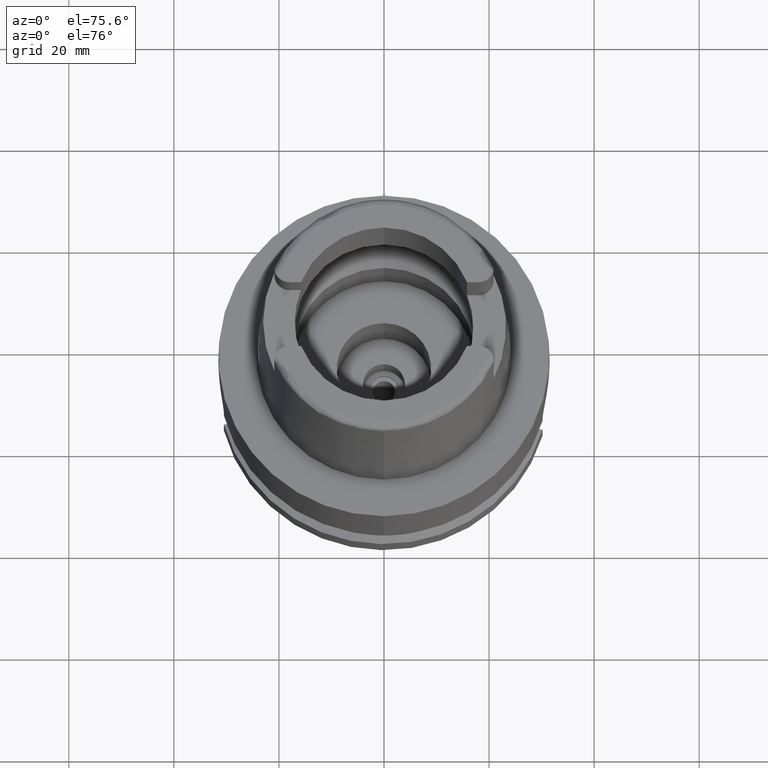
[diagram: clean part render]
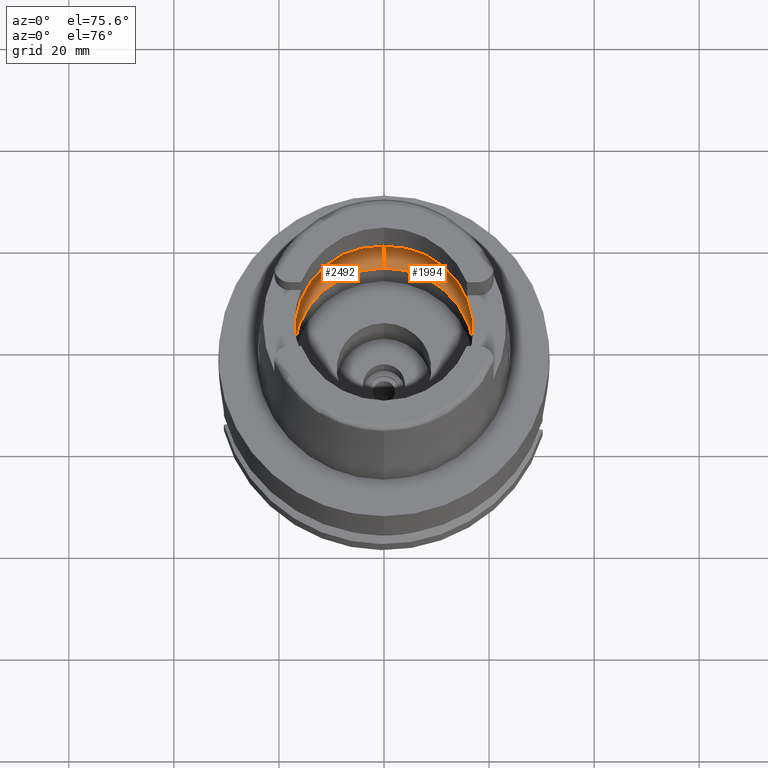
[diagram: same view with one multi-face feature highlighted, each face labeled with its STEP entity id]
A machine part, auxiliary view. The highlighted faces form ONE feature: a constant-radius fillet chain: 2 tangent blend faces with common blend radius 8 mm. The faces share edges in the B-rep.
Their STEP definitions:
[1] entity #2492 (Torus):
#52 = VERTEX_POINT ( 'NONE', #3886 ) ;
#147 = CARTESIAN_POINT ( 'NONE',  ( 0.0000000000000000000, 1.300407714776999850E-14, 6.186348233825000875 ) ) ;
#174 = CARTESIAN_POINT ( 'NONE',  ( 0.0000000000000000000, 20.00000000000000000, 6.186348233825000875 ) ) ;
#177 = CARTESIAN_POINT ( 'NONE',  ( -19.84575864665999845, 2.479085262491000030, 6.186348233825000875 ) ) ;
#184 = DIRECTION ( 'NONE',  ( 0.0000000000000000000, 0.6562500000000006661, -0.7545435292281016393 ) ) ;
#213 = B_SPLINE_CURVE_WITH_KNOTS ( 'NONE', 3,
 ( #3654, #623, #1465, #1895, #4470, #4074, #4963, #2372, #2763, #564, #1050, #3714, #594, #652, #177 ),
 .UNSPECIFIED., .F., .F.,
 ( 4, 2, 2, 1, 1, 1, 2, 2, 4 ),
 ( 0.0000000000000000000, 0.2500000000000007216, 0.3750000000000008882, 0.4375000000000010547, 0.4687500000000009992, 0.4843750000000011657, 0.4921875000000013323, 0.5000000000000014433, 1.000000000000000000 ),
 .UNSPECIFIED. ) ;
#370 = CARTESIAN_POINT ( 'NONE',  ( -19.94501428475999916, 0.0000000000000000000, 5.250000000000000000 ) ) ;
#384 = CARTESIAN_POINT ( 'NONE',  ( 0.0000000000000000000, 1.300407714776999850E-14, 6.186348233825000875 ) ) ;
#431 = CARTESIAN_POINT ( 'NONE',  ( -19.91448534792914060, -1.610508948442765709, 5.612924528901617194 ) ) ;
#482 = CARTESIAN_POINT ( 'NONE',  ( -19.94501428475999560, -0.4960410447512794141, 5.249999999999999112 ) ) ;
#547 = CARTESIAN_POINT ( 'NONE',  ( 0.0000000000000000000, 12.00000000000000000, 6.186348233825000875 ) ) ;
#564 = CARTESIAN_POINT ( 'NONE',  ( -19.92647143839581148, 1.304859504442483997, 5.484337483335712804 ) ) ;
#594 = CARTESIAN_POINT ( 'NONE',  ( -19.90996163222827420, 1.795769164605748314, 5.670285425948012659 ) ) ;
#623 = CARTESIAN_POINT ( 'NONE',  ( -19.94501428475999916, 0.2479298819758197214, 5.250000000000000000 ) ) ;
#652 = CARTESIAN_POINT ( 'NONE',  ( -19.88332336789493837, 2.178369348231663061, 5.921389932943862178 ) ) ;
#661 = AXIS2_PLACEMENT_3D ( 'NONE', #5313, #2262, #2685 ) ;
#881 = VERTEX_POINT ( 'NONE', #5395 ) ;
#954 = CARTESIAN_POINT ( 'NONE',  ( -19.94501428475999916, 0.0000000000000000000, 5.250000000000000000 ) ) ;
#1037 = CARTESIAN_POINT ( 'NONE',  ( 0.0000000000000000000, 1.300407714776999850E-14, 6.186348233825000875 ) ) ;
#1050 = CARTESIAN_POINT ( 'NONE',  ( -19.92607479997090181, 1.316895428534838430, 5.488828160326498562 ) ) ;
#1252 = CARTESIAN_POINT ( 'NONE',  ( -19.92391568384000777, -1.379820152732496918, 5.513021742193904728 ) ) ;
#1390 = DIRECTION ( 'NONE',  ( 1.000000000000000000, 0.0000000000000000000, 0.0000000000000000000 ) ) ;
#1465 = CARTESIAN_POINT ( 'NONE',  ( -19.94340254766833098, 0.4848963393951380429, 5.274596353473929966 ) ) ;
#1472 = AXIS2_PLACEMENT_3D ( 'NONE', #147, #4529, #4499 ) ;
#1476 = VERTEX_POINT ( 'NONE', #3082 ) ;
#1610 = EDGE_CURVE ( 'NONE', #2500, #1983, #213, .T. ) ;
#1675 = EDGE_LOOP ( 'NONE', ( #3782, #3605, #4403, #2002, #2463, #4620, #4049 ) ) ;
#1730 = CARTESIAN_POINT ( 'NONE',  ( -19.90654456091240476, -1.770007383644878418, 5.691881026691317125 ) ) ;
#1758 = CARTESIAN_POINT ( 'NONE',  ( -19.92517794959957911, -1.343610331872348684, 5.498961333861721812 ) ) ;
#1786 = CARTESIAN_POINT ( 'NONE',  ( -19.90056792326557300, -1.871072945708251334, 5.748194156555812562 ) ) ;
#1789 = CIRCLE ( 'NONE', #1972, 17.25000000000000000 ) ;
#1851 = FACE_OUTER_BOUND ( 'NONE', #1675, .T. ) ;
#1880 = DIRECTION ( 'NONE',  ( 0.0000000000000000000, 1.000000000000000000, 0.0000000000000000000 ) ) ;
#1895 = CARTESIAN_POINT ( 'NONE',  ( -19.93856733639333711, 0.8184016122553290362, 5.338643284459297256 ) ) ;
#1900 = CARTESIAN_POINT ( 'NONE',  ( -19.86453971831038245, -2.328737623861152795, 6.053878174929121059 ) ) ;
#1956 = VERTEX_POINT ( 'NONE', #3130 ) ;
#1972 = AXIS2_PLACEMENT_3D ( 'NONE', #2721, #3179, #1880 ) ;
#1983 = VERTEX_POINT ( 'NONE', #4841 ) ;
#2002 = ORIENTED_EDGE ( 'NONE', *, *, #4089, .T. ) ;
#2105 = CIRCLE ( 'NONE', #2294, 20.00000000000000000 ) ;
#2249 = EDGE_CURVE ( 'NONE', #1476, #1956, #1789, .T. ) ;
#2262 = DIRECTION ( 'NONE',  ( -1.000000000000000000, 0.0000000000000000000, 0.0000000000000000000 ) ) ;
#2294 = AXIS2_PLACEMENT_3D ( 'NONE', #384, #3497, #4749 ) ;
#2309 = CIRCLE ( 'NONE', #1472, 20.00000000000001421 ) ;
#2372 = CARTESIAN_POINT ( 'NONE',  ( -19.92840583769821805, 1.244196210291986793, 5.462253310886856283 ) ) ;
#2463 = ORIENTED_EDGE ( 'NONE', *, *, #4375, .F. ) ;
#2492 = ADVANCED_FACE ( 'NONE', ( #1851 ), #4175, .F. ) ;
#2500 = VERTEX_POINT ( 'NONE', #954 ) ;
#2663 = CIRCLE ( 'NONE', #4688, 7.999999999999992895 ) ;
#2664 = DIRECTION ( 'NONE',  ( 0.0000000000000000000, 0.0000000000000000000, -1.000000000000000000 ) ) ;
#2685 = DIRECTION ( 'NONE',  ( 0.0000000000000000000, -0.6562500000000006661, -0.7545435292281016393 ) ) ;
#2721 = CARTESIAN_POINT ( 'NONE',  ( 0.0000000000000000000, 1.300407714776999850E-14, 0.1500000000000999700 ) ) ;
#2763 = CARTESIAN_POINT ( 'NONE',  ( -19.92706167414716134, 1.286758763267425554, 5.477636828631165855 ) ) ;
#2897 = AXIS2_PLACEMENT_3D ( 'NONE', #1037, #2664, #3211 ) ;
#3055 = CARTESIAN_POINT ( 'NONE',  ( -19.92208503460736679, -1.430038535463957761, 5.533134759046327567 ) ) ;
#3082 = CARTESIAN_POINT ( 'NONE',  ( 0.0000000000000000000, 17.25000000000000000, 0.1500000000000999700 ) ) ;
#3122 = CIRCLE ( 'NONE', #661, 7.999999999999992895 ) ;
#3130 = CARTESIAN_POINT ( 'NONE',  ( 0.0000000000000000000, -17.25000000000000000, 0.1500000000000999700 ) ) ;
#3179 = DIRECTION ( 'NONE',  ( 0.0000000000000000000, 0.0000000000000000000, 1.000000000000000000 ) ) ;
#3211 = DIRECTION ( 'NONE',  ( 0.0000000000000000000, -1.000000000000000000, 0.0000000000000000000 ) ) ;
#3290 = VERTEX_POINT ( 'NONE', #174 ) ;
#3484 = CARTESIAN_POINT ( 'NONE',  ( -19.92547016831344209, -1.335028391746079013, 5.495682638901432604 ) ) ;
#3497 = DIRECTION ( 'NONE',  ( 0.0000000000000000000, 0.0000000000000000000, -1.000000000000000000 ) ) ;
#3538 = CARTESIAN_POINT ( 'NONE',  ( -19.91819969907412258, -1.528787881862460729, 5.574826406029533388 ) ) ;
#3605 = ORIENTED_EDGE ( 'NONE', *, *, #3989, .F. ) ;
#3654 = CARTESIAN_POINT ( 'NONE',  ( -19.94501428475999916, 0.0000000000000000000, 5.250000000000000000 ) ) ;
#3714 = CARTESIAN_POINT ( 'NONE',  ( -19.92591893665112224, 1.321589401495853577, 5.490589463356736033 ) ) ;
#3782 = ORIENTED_EDGE ( 'NONE', *, *, #5073, .F. ) ;
#3886 = CARTESIAN_POINT ( 'NONE',  ( -19.84575864665999845, -2.479085262491000030, 6.186348233825000875 ) ) ;
#3989 = EDGE_CURVE ( 'NONE', #1956, #881, #3122, .T. ) ;
#4049 = ORIENTED_EDGE ( 'NONE', *, *, #4198, .F. ) ;
#4074 = CARTESIAN_POINT ( 'NONE',  ( -19.93292625657250738, 1.081460392890758682, 5.408920836530865195 ) ) ;
#4089 = EDGE_CURVE ( 'NONE', #1476, #3290, #2663, .T. ) ;
#4111 = CARTESIAN_POINT ( 'NONE',  ( -19.84575864665999845, -2.479085262491000030, 6.186348233825000875 ) ) ;
#4175 = TOROIDAL_SURFACE ( 'NONE', #2897, 12.00000000000000000, 8.000000000000000000 ) ;
#4198 = EDGE_CURVE ( 'NONE', #52, #2500, #5201, .T. ) ;
#4335 = CARTESIAN_POINT ( 'NONE',  ( -19.88058967141808253, -2.158413397975924575, 5.925203673425760265 ) ) ;
#4375 = EDGE_CURVE ( 'NONE', #1983, #3290, #2309, .T. ) ;
#4403 = ORIENTED_EDGE ( 'NONE', *, *, #2249, .F. ) ;
#4470 = CARTESIAN_POINT ( 'NONE',  ( -19.93655266502874923, 0.9259499426782410447, 5.364516364714504881 ) ) ;
#4499 = DIRECTION ( 'NONE',  ( -0.9922879323327794543, 0.1239542631244973381, 0.0000000000000000000 ) ) ;
#4529 = DIRECTION ( 'NONE',  ( 0.0000000000000000000, 0.0000000000000000000, -1.000000000000000000 ) ) ;
#4620 = ORIENTED_EDGE ( 'NONE', *, *, #1610, .F. ) ;
#4688 = AXIS2_PLACEMENT_3D ( 'NONE', #547, #1390, #184 ) ;
#4749 = DIRECTION ( 'NONE',  ( 0.0000000000000000000, -1.000000000000000000, 0.0000000000000000000 ) ) ;
#4793 = CARTESIAN_POINT ( 'NONE',  ( -19.93856674119000161, -0.9459643382330632511, 5.348222180792832070 ) ) ;
#4841 = CARTESIAN_POINT ( 'NONE',  ( -19.84575864665999845, 2.479085262491000030, 6.186348233825000875 ) ) ;
#4963 = CARTESIAN_POINT ( 'NONE',  ( -19.93096195199203180, 1.157765540341131993, 5.432522363494912021 ) ) ;
#5073 = EDGE_CURVE ( 'NONE', #881, #52, #2105, .T. ) ;
#5195 = CARTESIAN_POINT ( 'NONE',  ( -19.92467624382528868, -1.358118166560958739, 5.504563616461238595 ) ) ;
#5201 = B_SPLINE_CURVE_WITH_KNOTS ( 'NONE', 3,
 ( #4111, #1900, #4335, #1786, #1730, #431, #3538, #3055, #1252, #5195, #1758, #3484, #4793, #482, #370 ),
 .UNSPECIFIED., .F., .F.,
 ( 4, 2, 2, 1, 1, 1, 2, 2, 4 ),
 ( 0.0000000000000000000, 0.2500000000000023315, 0.3750000000000032752, 0.4375000000000036082, 0.4687500000000038858, 0.4843750000000041633, 0.4921875000000042744, 0.5000000000000043299, 1.000000000000000000 ),
 .UNSPECIFIED. ) ;
#5313 = CARTESIAN_POINT ( 'NONE',  ( 0.0000000000000000000, -12.00000000000000000, 6.186348233825000875 ) ) ;
#5395 = CARTESIAN_POINT ( 'NONE',  ( 0.0000000000000000000, -20.00000000000000000, 6.186348233825000875 ) ) ;
[2] entity #1994 (Torus):
#20 = DIRECTION ( 'NONE',  ( 0.0000000000000000000, -1.000000000000000000, 0.0000000000000000000 ) ) ;
#100 = ORIENTED_EDGE ( 'NONE', *, *, #4089, .F. ) ;
#124 = VERTEX_POINT ( 'NONE', #1332 ) ;
#174 = CARTESIAN_POINT ( 'NONE',  ( 0.0000000000000000000, 20.00000000000000000, 6.186348233825000875 ) ) ;
#184 = DIRECTION ( 'NONE',  ( 0.0000000000000000000, 0.6562500000000006661, -0.7545435292281016393 ) ) ;
#343 = CARTESIAN_POINT ( 'NONE',  ( 0.0000000000000000000, 1.300407714776999850E-14, 6.186348233825000875 ) ) ;
#501 = VERTEX_POINT ( 'NONE', #3390 ) ;
#547 = CARTESIAN_POINT ( 'NONE',  ( 0.0000000000000000000, 12.00000000000000000, 6.186348233825000875 ) ) ;
#551 = CARTESIAN_POINT ( 'NONE',  ( 19.94501428475999916, -0.2480014560080615882, 5.249999999999998224 ) ) ;
#556 = ORIENTED_EDGE ( 'NONE', *, *, #5210, .F. ) ;
#661 = AXIS2_PLACEMENT_3D ( 'NONE', #5313, #2262, #2685 ) ;
#680 = CARTESIAN_POINT ( 'NONE',  ( 19.94501428475999916, 0.0000000000000000000, 5.250000000000000000 ) ) ;
#856 = CARTESIAN_POINT ( 'NONE',  ( 19.92840408989551904, -1.244367450968541844, 5.462313551719105043 ) ) ;
#881 = VERTEX_POINT ( 'NONE', #5395 ) ;
#963 = CARTESIAN_POINT ( 'NONE',  ( 19.91448758455283041, 1.610401092888342545, 5.612873060275781256 ) ) ;
#1059 = CIRCLE ( 'NONE', #3618, 20.00000000000001421 ) ;
#1143 = DIRECTION ( 'NONE',  ( 0.0000000000000000000, 0.0000000000000000000, -1.000000000000000000 ) ) ;
#1211 = ORIENTED_EDGE ( 'NONE', *, *, #4588, .F. ) ;
#1228 = CARTESIAN_POINT ( 'NONE',  ( 19.92646948702511267, -1.305026996693501085, 5.484399654281021164 ) ) ;
#1233 = EDGE_CURVE ( 'NONE', #124, #5206, #5311, .T. ) ;
#1301 = FACE_OUTER_BOUND ( 'NONE', #3777, .T. ) ;
#1332 = CARTESIAN_POINT ( 'NONE',  ( 19.94501428475999916, 0.0000000000000000000, 5.250000000000000000 ) ) ;
#1379 = CARTESIAN_POINT ( 'NONE',  ( 19.88059069913698096, 2.158394907212736413, 5.925188472889173497 ) ) ;
#1390 = DIRECTION ( 'NONE',  ( 1.000000000000000000, 0.0000000000000000000, 0.0000000000000000000 ) ) ;
#1476 = VERTEX_POINT ( 'NONE', #3082 ) ;
#1496 = DIRECTION ( 'NONE',  ( 0.0000000000000000000, 0.0000000000000000000, -1.000000000000000000 ) ) ;
#1641 = EDGE_CURVE ( 'NONE', #3290, #501, #3151, .T. ) ;
#1707 = CARTESIAN_POINT ( 'NONE',  ( 19.93096047318400110, -1.157940144303397423, 5.432579051026481309 ) ) ;
#1716 = ORIENTED_EDGE ( 'NONE', *, *, #1641, .F. ) ;
#1849 = EDGE_CURVE ( 'NONE', #5206, #881, #1059, .T. ) ;
#1878 = CARTESIAN_POINT ( 'NONE',  ( 19.94501428475999916, 0.0000000000000000000, 5.250000000000000000 ) ) ;
#1956 = VERTEX_POINT ( 'NONE', #3130 ) ;
#1959 = CARTESIAN_POINT ( 'NONE',  ( 19.92208759317466615, 1.429891859895263462, 5.533074159369055778 ) ) ;
#1989 = CARTESIAN_POINT ( 'NONE',  ( 19.94501428475999560, 0.4959066315530564206, 5.249999999999998224 ) ) ;
#1994 = ADVANCED_FACE ( 'NONE', ( #1301 ), #4067, .F. ) ;
#2151 = CARTESIAN_POINT ( 'NONE',  ( 0.0000000000000000000, 1.300407714776999850E-14, 0.1500000000000999700 ) ) ;
#2262 = DIRECTION ( 'NONE',  ( -1.000000000000000000, 0.0000000000000000000, 0.0000000000000000000 ) ) ;
#2581 = DIRECTION ( 'NONE',  ( 0.0000000000000000000, 0.0000000000000000000, 1.000000000000000000 ) ) ;
#2663 = CIRCLE ( 'NONE', #4688, 7.999999999999992895 ) ;
#2673 = CARTESIAN_POINT ( 'NONE',  ( 19.86454025209263818, 2.328733350789800483, 6.053874409961354175 ) ) ;
#2685 = DIRECTION ( 'NONE',  ( 0.0000000000000000000, -0.6562500000000006661, -0.7545435292281016393 ) ) ;
#2700 = CARTESIAN_POINT ( 'NONE',  ( 0.0000000000000000000, 1.300407714776999850E-14, 6.186348233825000875 ) ) ;
#2848 = CARTESIAN_POINT ( 'NONE',  ( 19.92467892137705832, 1.357954799801602386, 5.504500142502863902 ) ) ;
#2853 = CARTESIAN_POINT ( 'NONE',  ( 0.0000000000000000000, 1.300407714776999850E-14, 6.186348233825000875 ) ) ;
#2906 = CARTESIAN_POINT ( 'NONE',  ( 19.91820208730434061, 1.528663205433574479, 5.574770377084651507 ) ) ;
#2971 = CARTESIAN_POINT ( 'NONE',  ( 19.88332298889634231, -2.178372382208180191, 5.921392606155435168 ) ) ;
#3002 = CARTESIAN_POINT ( 'NONE',  ( 19.93856665794375260, -0.8185641883581231681, 5.338679171357463282 ) ) ;
#3082 = CARTESIAN_POINT ( 'NONE',  ( 0.0000000000000000000, 17.25000000000000000, 0.1500000000000999700 ) ) ;
#3100 = DIRECTION ( 'NONE',  ( 0.0000000000000000000, -1.000000000000000000, 0.0000000000000000000 ) ) ;
#3122 = CIRCLE ( 'NONE', #661, 7.999999999999992895 ) ;
#3130 = CARTESIAN_POINT ( 'NONE',  ( 0.0000000000000000000, -17.25000000000000000, 0.1500000000000999700 ) ) ;
#3132 = CARTESIAN_POINT ( 'NONE',  ( 19.90056963212105856, 1.871013146673759620, 5.748159224276529145 ) ) ;
#3151 = CIRCLE ( 'NONE', #3611, 20.00000000000000000 ) ;
#3178 = CARTESIAN_POINT ( 'NONE',  ( 19.94340237805593219, -0.4850180019504579665, 5.274610396127643597 ) ) ;
#3270 = CARTESIAN_POINT ( 'NONE',  ( 19.90996057478010073, -1.795819818033601134, 5.670329850203941646 ) ) ;
#3290 = VERTEX_POINT ( 'NONE', #174 ) ;
#3295 = CIRCLE ( 'NONE', #4472, 17.25000000000000000 ) ;
#3390 = CARTESIAN_POINT ( 'NONE',  ( 19.84575864665999845, 2.479085262491000030, 6.186348233825000875 ) ) ;
#3433 = CARTESIAN_POINT ( 'NONE',  ( 19.93292498447956262, -1.081634995804885646, 5.408973391216312265 ) ) ;
#3611 = AXIS2_PLACEMENT_3D ( 'NONE', #2853, #1496, #4594 ) ;
#3618 = AXIS2_PLACEMENT_3D ( 'NONE', #343, #1143, #4276 ) ;
#3710 = CARTESIAN_POINT ( 'NONE',  ( 19.92547292124042002, 1.334858430821708408, 5.495617893788528718 ) ) ;
#3725 = CARTESIAN_POINT ( 'NONE',  ( 19.92591688602272626, -1.321756895853151592, 5.490652547651766469 ) ) ;
#3735 = CARTESIAN_POINT ( 'NONE',  ( 19.92518065070697730, 1.343443539031581091, 5.498897323770547629 ) ) ;
#3777 = EDGE_LOOP ( 'NONE', ( #1211, #1716, #100, #556, #4808, #4103, #4058 ) ) ;
#3826 = CARTESIAN_POINT ( 'NONE',  ( 19.84575864665999845, -2.479085262491000030, 6.186348233825000875 ) ) ;
#3989 = EDGE_CURVE ( 'NONE', #1956, #881, #3122, .T. ) ;
#4058 = ORIENTED_EDGE ( 'NONE', *, *, #1233, .F. ) ;
#4067 = TOROIDAL_SURFACE ( 'NONE', #4708, 12.00000000000000000, 8.000000000000000000 ) ;
#4089 = EDGE_CURVE ( 'NONE', #1476, #3290, #2663, .T. ) ;
#4100 = CARTESIAN_POINT ( 'NONE',  ( 19.84575864665999845, 2.479085262491000030, 6.186348233825000875 ) ) ;
#4103 = ORIENTED_EDGE ( 'NONE', *, *, #1849, .F. ) ;
#4276 = DIRECTION ( 'NONE',  ( 0.9922879323327794543, -0.1239542631244973381, 0.0000000000000000000 ) ) ;
#4415 = DIRECTION ( 'NONE',  ( 0.0000000000000000000, 0.0000000000000000000, -1.000000000000000000 ) ) ;
#4472 = AXIS2_PLACEMENT_3D ( 'NONE', #2151, #2581, #20 ) ;
#4588 = EDGE_CURVE ( 'NONE', #501, #124, #5478, .T. ) ;
#4590 = CARTESIAN_POINT ( 'NONE',  ( 19.93856764937210002, 0.9457748455398172771, 5.348171637976009585 ) ) ;
#4594 = DIRECTION ( 'NONE',  ( 0.0000000000000000000, 1.000000000000000000, 0.0000000000000000000 ) ) ;
#4688 = AXIS2_PLACEMENT_3D ( 'NONE', #547, #1390, #184 ) ;
#4708 = AXIS2_PLACEMENT_3D ( 'NONE', #2700, #4415, #3100 ) ;
#4808 = ORIENTED_EDGE ( 'NONE', *, *, #3989, .T. ) ;
#4877 = CARTESIAN_POINT ( 'NONE',  ( 19.90654648685201167, 1.769930501896109565, 5.691839127009703958 ) ) ;
#5033 = CARTESIAN_POINT ( 'NONE',  ( 19.93655177456368932, -0.9261205406783343808, 5.364559693695562181 ) ) ;
#5138 = CARTESIAN_POINT ( 'NONE',  ( 19.92705978489038188, -1.286927501587694644, 5.477698479241642993 ) ) ;
#5181 = CARTESIAN_POINT ( 'NONE',  ( 19.84575864665999845, -2.479085262491000030, 6.186348233825000875 ) ) ;
#5206 = VERTEX_POINT ( 'NONE', #5181 ) ;
#5210 = EDGE_CURVE ( 'NONE', #1956, #1476, #3295, .T. ) ;
#5311 = B_SPLINE_CURVE_WITH_KNOTS ( 'NONE', 3,
 ( #1878, #551, #3178, #3002, #5033, #3433, #1707, #856, #5138, #1228, #5462, #3725, #3270, #2971, #3826 ),
 .UNSPECIFIED., .F., .F.,
 ( 4, 2, 2, 1, 1, 1, 2, 2, 4 ),
 ( 0.0000000000000000000, 0.2499999999999981681, 0.3749999999999972244, 0.4374999999999969469, 0.4687499999999968359, 0.4843749999999966138, 0.4921874999999966138, 0.4999999999999966693, 1.000000000000000000 ),
 .UNSPECIFIED. ) ;
#5313 = CARTESIAN_POINT ( 'NONE',  ( 0.0000000000000000000, -12.00000000000000000, 6.186348233825000875 ) ) ;
#5395 = CARTESIAN_POINT ( 'NONE',  ( 0.0000000000000000000, -20.00000000000000000, 6.186348233825000875 ) ) ;
#5462 = CARTESIAN_POINT ( 'NONE',  ( 19.92607280685966842, -1.317062051744477991, 5.488890658955079438 ) ) ;
#5478 = B_SPLINE_CURVE_WITH_KNOTS ( 'NONE', 3,
 ( #4100, #2673, #1379, #3132, #4877, #963, #2906, #1959, #5559, #2848, #3735, #3710, #4590, #1989, #680 ),
 .UNSPECIFIED., .F., .F.,
 ( 4, 2, 2, 1, 1, 1, 2, 2, 4 ),
 ( 0.0000000000000000000, 0.2499999999999967804, 0.3749999999999953371, 0.4374999999999946709, 0.4687499999999943934, 0.4843749999999942824, 0.4921874999999941713, 0.4999999999999941158, 1.000000000000000000 ),
 .UNSPECIFIED. ) ;
#5559 = CARTESIAN_POINT ( 'NONE',  ( 19.92391832594157819, 1.379661882598573808, 5.512959091754853880 ) ) ;